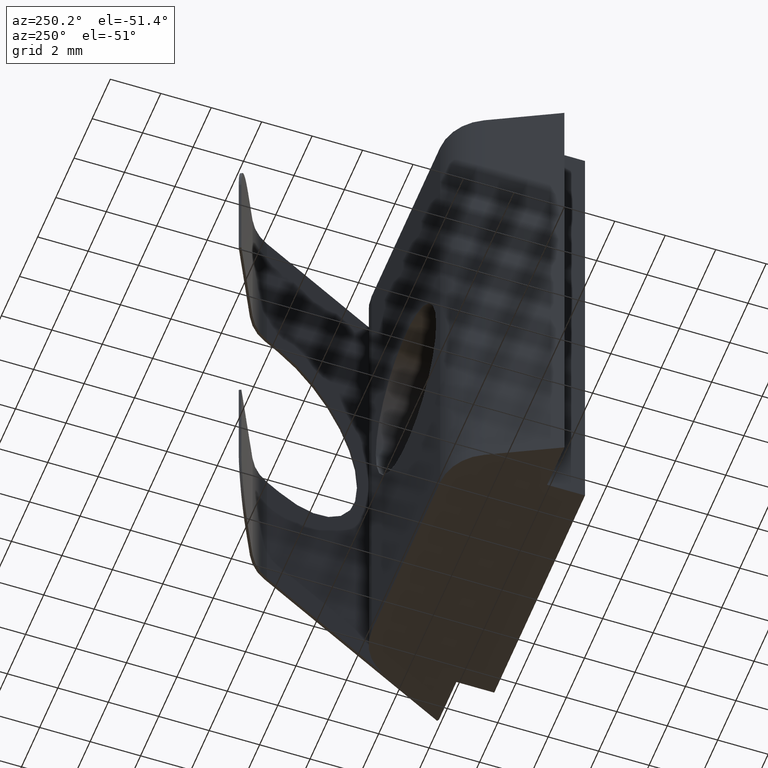
[diagram: clean part render]
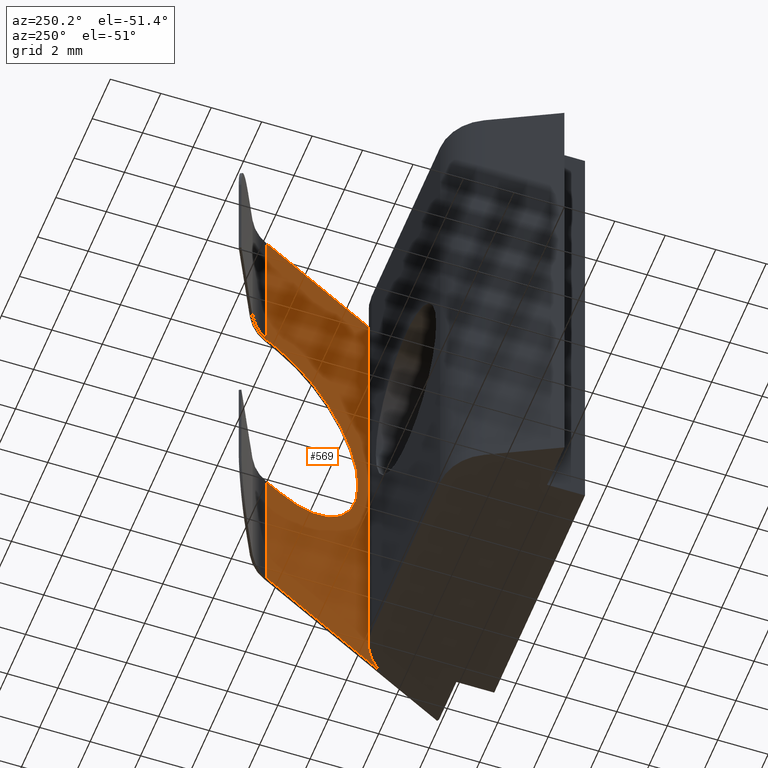
[diagram: same view with one face highlighted and labeled with its STEP entity id]
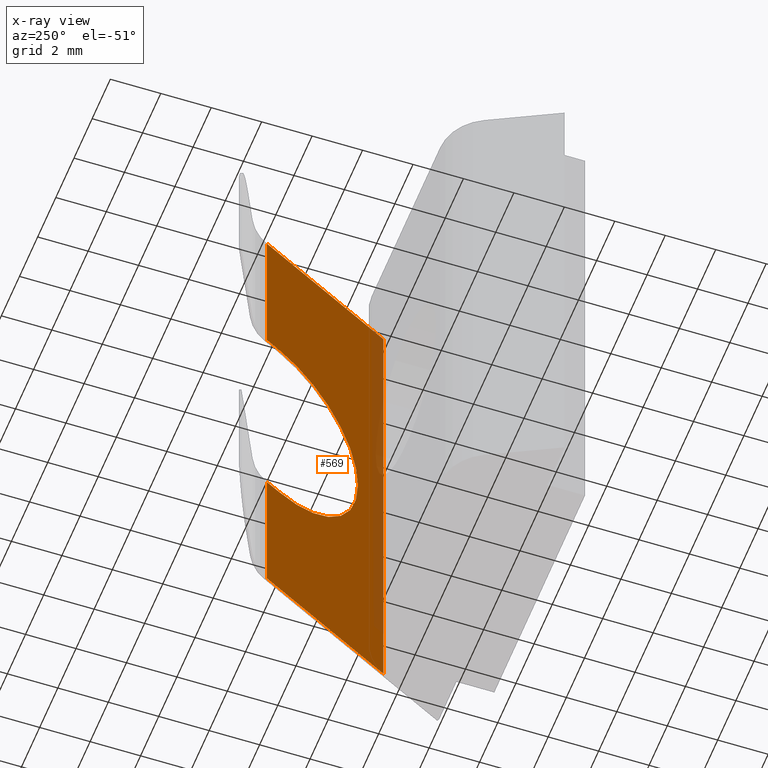
[diagram: x-ray of the same camera — body ghosted, the highlighted face saturated]
A machine part, auxiliary view. The second image highlights one B-rep face of the part: STEP entity #569.
The next image is the same camera in x-ray: the body ghosted, the highlighted face saturated — about 11% of this face is hidden behind the body in this view.
In plain terms, the highlighted planar face has unit normal (-0.8944, -0.4472, 0).
Its self-contained STEP definition (entity closure, byte-faithful):
#20=PLANE('',#629);
#42=FACE_OUTER_BOUND('',#72,.T.);
#72=EDGE_LOOP('',(#412,#413,#414,#415,#416,#417,#418,#419));
#103=LINE('',#845,#167);
#111=LINE('',#870,#175);
#113=LINE('',#886,#177);
#114=LINE('',#888,#178);
#115=LINE('',#890,#179);
#116=LINE('',#892,#180);
#117=LINE('',#893,#181);
#167=VECTOR('',#680,10.);
#175=VECTOR('',#698,10.);
#177=VECTOR('',#706,10.);
#178=VECTOR('',#707,10.);
#179=VECTOR('',#708,10.);
#180=VECTOR('',#709,10.);
#181=VECTOR('',#710,10.);
#235=CIRCLE('',#628,4.25);
#252=VERTEX_POINT('',#842);
#253=VERTEX_POINT('',#844);
#264=VERTEX_POINT('',#867);
#265=VERTEX_POINT('',#869);
#266=VERTEX_POINT('',#885);
#267=VERTEX_POINT('',#887);
#268=VERTEX_POINT('',#889);
#269=VERTEX_POINT('',#891);
#309=EDGE_CURVE('',#253,#252,#103,.T.);
#321=EDGE_CURVE('',#265,#264,#111,.T.);
#324=EDGE_CURVE('',#252,#265,#235,.T.);
#325=EDGE_CURVE('',#266,#264,#113,.T.);
#326=EDGE_CURVE('',#267,#266,#114,.T.);
#327=EDGE_CURVE('',#268,#267,#115,.T.);
#328=EDGE_CURVE('',#269,#268,#116,.T.);
#329=EDGE_CURVE('',#253,#269,#117,.T.);
#412=ORIENTED_EDGE('',*,*,#309,.T.);
#413=ORIENTED_EDGE('',*,*,#324,.T.);
#414=ORIENTED_EDGE('',*,*,#321,.T.);
#415=ORIENTED_EDGE('',*,*,#325,.F.);
#416=ORIENTED_EDGE('',*,*,#326,.F.);
#417=ORIENTED_EDGE('',*,*,#327,.F.);
#418=ORIENTED_EDGE('',*,*,#328,.F.);
#419=ORIENTED_EDGE('',*,*,#329,.F.);
#569=ADVANCED_FACE('',(#42),#20,.T.);
#628=AXIS2_PLACEMENT_3D('',#883,#702,#703);
#629=AXIS2_PLACEMENT_3D('',#884,#704,#705);
#680=DIRECTION('',(0.447213595499958,-0.894427190999916,-4.79290718977497E-16));
#698=DIRECTION('',(-0.447213595499958,0.894427190999916,4.79290718977497E-16));
#702=DIRECTION('center_axis',(0.894427190999916,0.447213595499958,0.));
#703=DIRECTION('ref_axis',(0.,0.,1.));
#704=DIRECTION('center_axis',(-0.894427190999916,-0.447213595499958,0.));
#705=DIRECTION('ref_axis',(0.447213595499958,-0.894427190999916,0.));
#706=DIRECTION('',(0.,0.,1.));
#707=DIRECTION('',(-0.447213595499958,0.894427190999916,0.));
#708=DIRECTION('',(0.,0.,-1.));
#709=DIRECTION('',(0.447213595499958,-0.894427190999916,0.));
#710=DIRECTION('',(0.,0.,1.));
#842=CARTESIAN_POINT('',(3.03796454497524,7.72407091004953,14.25));
#844=CARTESIAN_POINT('',(2.73686532604853,8.32626934790295,14.25));
#845=CARTESIAN_POINT('',(1.60773903213181,10.5845219357364,14.25));
#867=CARTESIAN_POINT('',(2.73686532604853,8.32626934790295,5.75));
#869=CARTESIAN_POINT('',(3.03796454497524,7.72407091004953,5.75));
#870=CARTESIAN_POINT('',(2.4364750138486,8.92704997230281,5.75));
#883=CARTESIAN_POINT('Origin',(3.03796454497524,7.72407091004953,10.));
#884=CARTESIAN_POINT('Origin',(2.442578391717,8.914843216566,0.));
#885=CARTESIAN_POINT('',(2.73686532604853,8.32626934790295,0.));
#886=CARTESIAN_POINT('',(2.73686532604853,8.32626934790295,0.));
#887=CARTESIAN_POINT('',(5.55278640450004,2.69442719099992,0.));
#888=CARTESIAN_POINT('',(6.9,-9.0205620750794E-16,0.));
#889=CARTESIAN_POINT('',(5.55278640450004,2.69442719099992,20.));
#890=CARTESIAN_POINT('',(5.55278640450004,2.69442719099992,0.));
#891=CARTESIAN_POINT('',(2.73686532604853,8.32626934790295,20.));
#892=CARTESIAN_POINT('',(6.9,-9.0205620750794E-16,20.));
#893=CARTESIAN_POINT('',(2.73686532604853,8.32626934790295,0.));